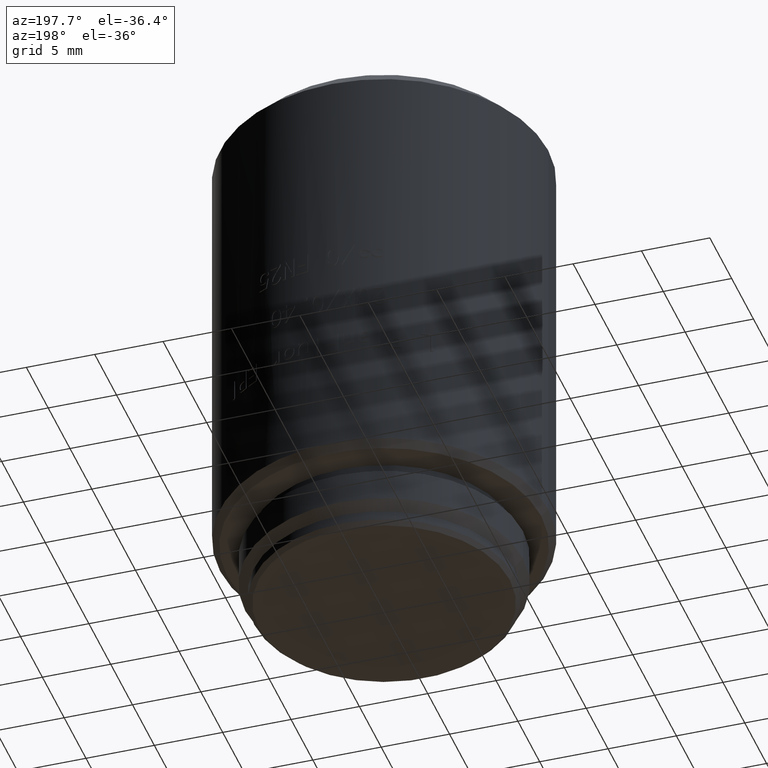
[diagram: clean part render]
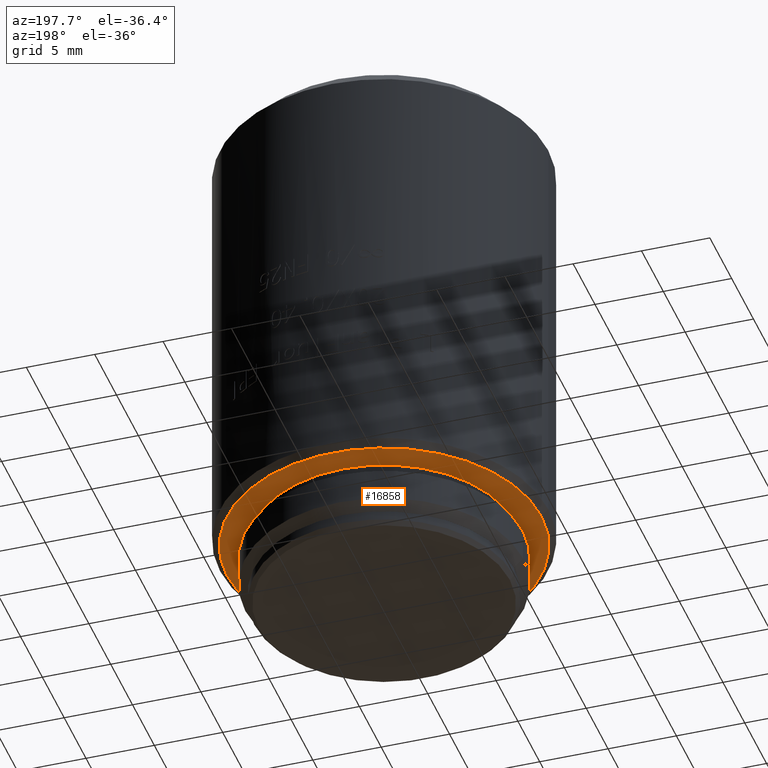
[diagram: same view with one face highlighted and labeled with its STEP entity id]
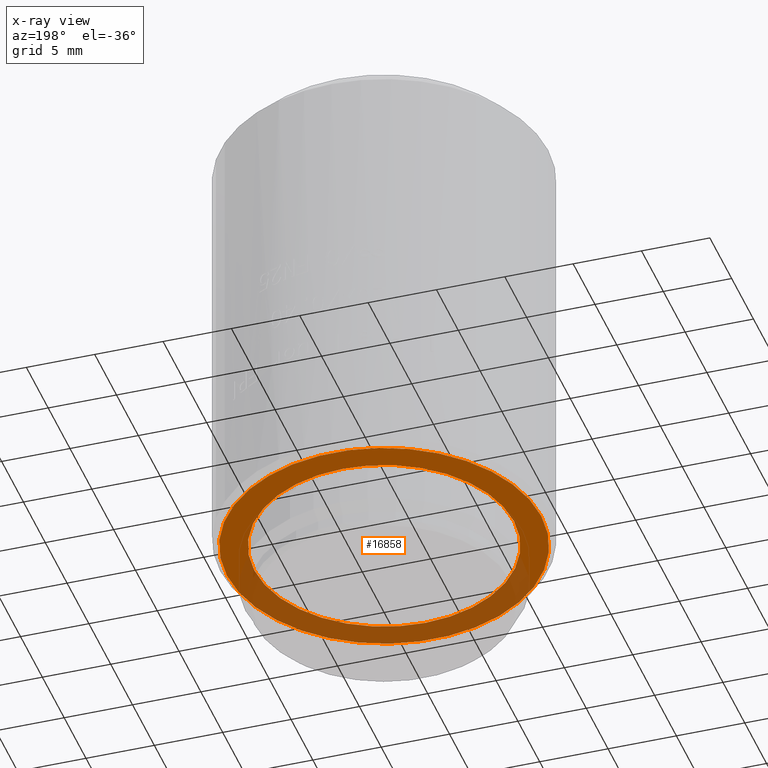
[diagram: x-ray of the same camera — body ghosted, the highlighted face saturated]
A machine part, auxiliary view. The second image highlights one B-rep face of the part: STEP entity #16858.
The next image is the same camera in x-ray: the body ghosted, the highlighted face saturated — about 40% of this face is hidden behind the body in this view.
In plain terms, the highlighted planar face has unit normal (0, 0, -1).
Its self-contained STEP definition (entity closure, byte-faithful):
#194 = AXIS2_PLACEMENT_3D ( 'NONE', #10955, #3561, #7311 ) ;
#523 = AXIS2_PLACEMENT_3D ( 'NONE', #7043, #1961, #22240 ) ;
#1961 = DIRECTION ( 'NONE',  ( 0.000000000000000000, 0.000000000000000000, -1.000000000000000000 ) ) ;
#1964 = EDGE_CURVE ( 'NONE', #13934, #14293, #21835, .T. ) ;
#2644 = EDGE_CURVE ( 'NONE', #14293, #13934, #7864, .T. ) ;
#3561 = DIRECTION ( 'NONE',  ( 0.000000000000000000, 0.000000000000000000, -1.000000000000000000 ) ) ;
#3640 = VERTEX_POINT ( 'NONE', #6856 ) ;
#5122 = FACE_BOUND ( 'NONE', #6320, .T. ) ;
#5247 = CIRCLE ( 'NONE', #18821, 9.500000000000000000 ) ;
#5248 = FACE_OUTER_BOUND ( 'NONE', #7094, .T. ) ;
#5504 = DIRECTION ( 'NONE',  ( 0.000000000000000000, 0.000000000000000000, -1.000000000000000000 ) ) ;
#6320 = EDGE_LOOP ( 'NONE', ( #18034, #14597 ) ) ;
#6334 = DIRECTION ( 'NONE',  ( 0.000000000000000000, 0.000000000000000000, -1.000000000000000000 ) ) ;
#6856 = CARTESIAN_POINT ( 'NONE',  ( 9.500000000000000000, 0.000000000000000000, 5.000000000000000000 ) ) ;
#7043 = CARTESIAN_POINT ( 'NONE',  ( 0.000000000000000000, 0.000000000000000000, 5.000000000000000000 ) ) ;
#7094 = EDGE_LOOP ( 'NONE', ( #12911, #14474 ) ) ;
#7311 = DIRECTION ( 'NONE',  ( -1.000000000000000000, 0.000000000000000000, 0.000000000000000000 ) ) ;
#7864 = CIRCLE ( 'NONE', #523, 11.50000000000000000 ) ;
#7946 = CIRCLE ( 'NONE', #194, 9.500000000000000000 ) ;
#9696 = CARTESIAN_POINT ( 'NONE',  ( -9.500000000000000000, 1.163414459189985485E-15, 5.000000000000000000 ) ) ;
#10955 = CARTESIAN_POINT ( 'NONE',  ( 0.000000000000000000, 0.000000000000000000, 5.000000000000000000 ) ) ;
#11206 = DIRECTION ( 'NONE',  ( -1.000000000000000000, 0.000000000000000000, 0.000000000000000000 ) ) ;
#11681 = EDGE_CURVE ( 'NONE', #18362, #3640, #5247, .T. ) ;
#12904 = CARTESIAN_POINT ( 'NONE',  ( 0.000000000000000000, 0.000000000000000000, 5.000000000000000000 ) ) ;
#12911 = ORIENTED_EDGE ( 'NONE', *, *, #2644, .T. ) ;
#13866 = CARTESIAN_POINT ( 'NONE',  ( 0.000000000000000000, 0.000000000000000000, 5.000000000000000000 ) ) ;
#13934 = VERTEX_POINT ( 'NONE', #18096 ) ;
#14104 = CARTESIAN_POINT ( 'NONE',  ( 0.000000000000000000, 0.000000000000000000, 5.000000000000000000 ) ) ;
#14293 = VERTEX_POINT ( 'NONE', #16129 ) ;
#14474 = ORIENTED_EDGE ( 'NONE', *, *, #1964, .T. ) ;
#14597 = ORIENTED_EDGE ( 'NONE', *, *, #11681, .F. ) ;
#16129 = CARTESIAN_POINT ( 'NONE',  ( 11.50000000000000000, 0.000000000000000000, 5.000000000000000000 ) ) ;
#16858 = ADVANCED_FACE ( 'NONE', ( #5122, #5248 ), #21880, .T. ) ;
#17871 = DIRECTION ( 'NONE',  ( 0.000000000000000000, 0.000000000000000000, -1.000000000000000000 ) ) ;
#18034 = ORIENTED_EDGE ( 'NONE', *, *, #20200, .F. ) ;
#18096 = CARTESIAN_POINT ( 'NONE',  ( -11.50000000000000000, 1.438959988998139963E-15, 5.000000000000000000 ) ) ;
#18347 = AXIS2_PLACEMENT_3D ( 'NONE', #14104, #17871, #21637 ) ;
#18362 = VERTEX_POINT ( 'NONE', #9696 ) ;
#18821 = AXIS2_PLACEMENT_3D ( 'NONE', #13866, #6334, #21515 ) ;
#20200 = EDGE_CURVE ( 'NONE', #3640, #18362, #7946, .T. ) ;
#21515 = DIRECTION ( 'NONE',  ( -1.000000000000000000, 0.000000000000000000, 0.000000000000000000 ) ) ;
#21637 = DIRECTION ( 'NONE',  ( 0.000000000000000000, -1.000000000000000000, 0.000000000000000000 ) ) ;
#21835 = CIRCLE ( 'NONE', #23392, 11.50000000000000000 ) ;
#21880 = PLANE ( 'NONE',  #18347 ) ;
#22240 = DIRECTION ( 'NONE',  ( -1.000000000000000000, 0.000000000000000000, 0.000000000000000000 ) ) ;
#23392 = AXIS2_PLACEMENT_3D ( 'NONE', #12904, #5504, #11206 ) ;